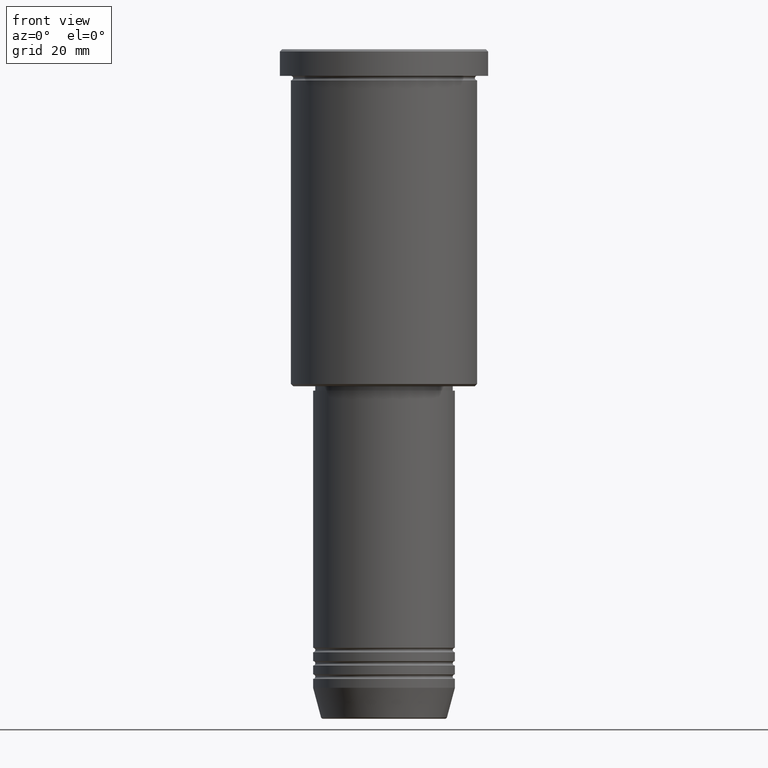
[diagram: clean part render]
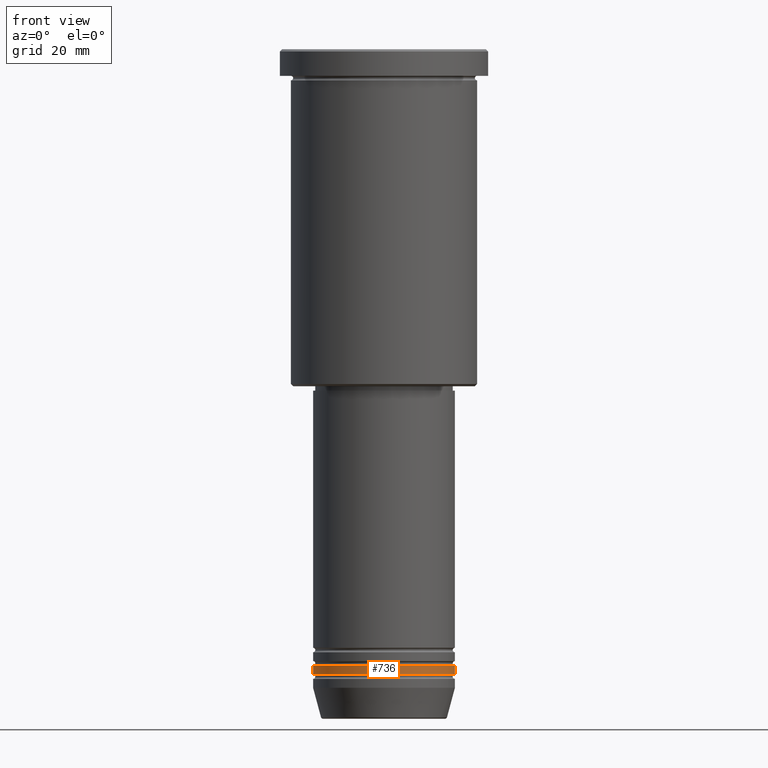
[diagram: same view with one face highlighted and labeled with its STEP entity id]
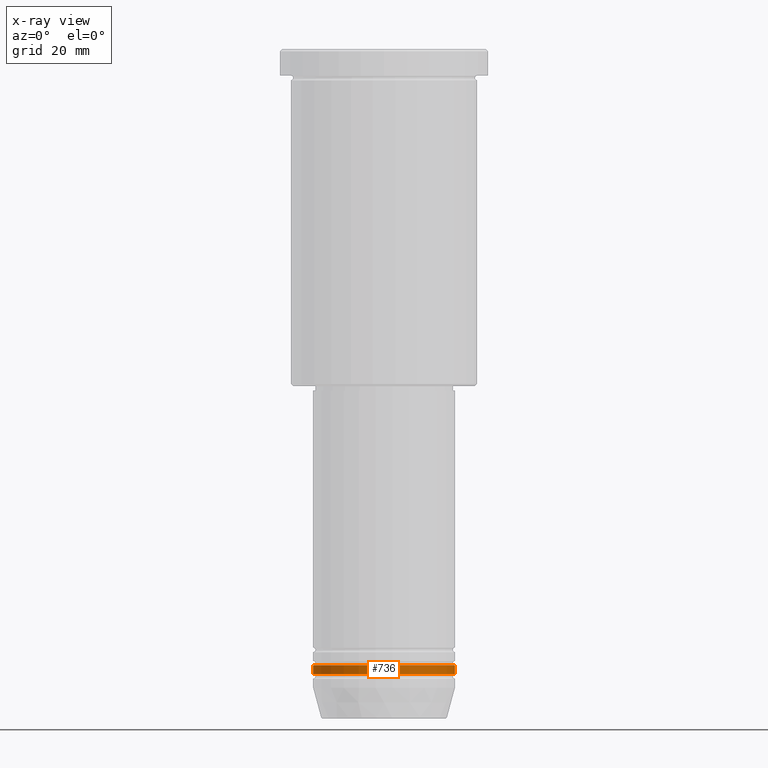
[diagram: x-ray of the same camera — body ghosted, the highlighted face saturated]
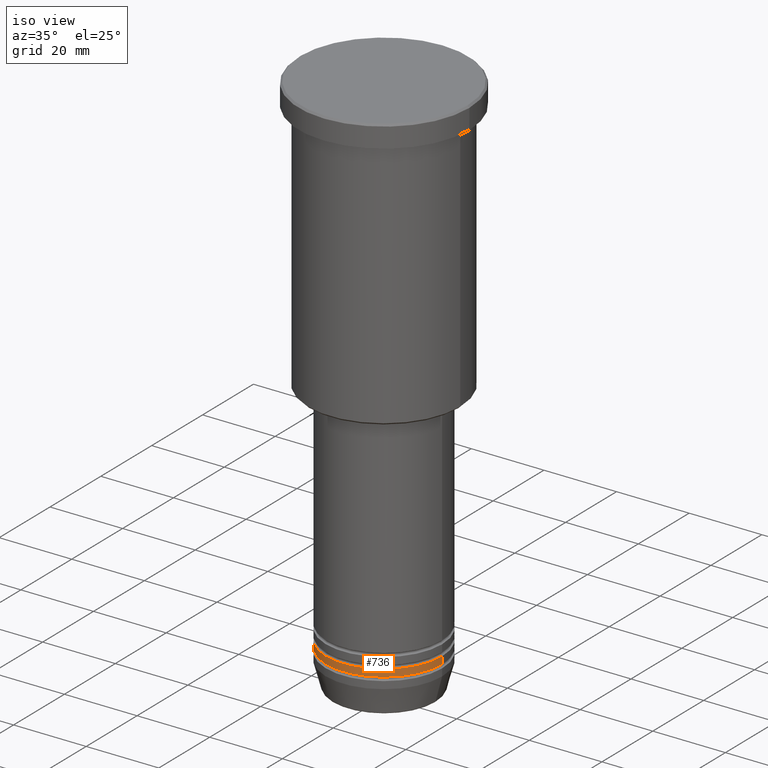
[diagram: same view with one face highlighted and labeled with its STEP entity id]
A machine part, front view. The second image highlights one B-rep face of the part: STEP entity #736.
The next image is the same camera in x-ray: the body ghosted, the highlighted face saturated — about 0% of this face is hidden behind the body in this view.
A second angle (iso view) of the same face is appended — the face is thin or edge-on in the first view.
In plain terms, the highlighted cylindrical surface (partial cylindrical patch) has radius 16 mm, axis along (-0, -0, 1).
Its self-contained STEP definition (entity closure, byte-faithful):
#36 = VERTEX_POINT ( 'NONE', #984 ) ;
#49 = ORIENTED_EDGE ( 'NONE', *, *, #144, .T. ) ;
#82 = CIRCLE ( 'NONE', #397, 16.00000000000000000 ) ;
#144 = EDGE_CURVE ( 'NONE', #577, #36, #275, .T. ) ;
#161 = VECTOR ( 'NONE', #497, 1000.000000000000000 ) ;
#170 = CARTESIAN_POINT ( 'NONE',  ( 0.000000000000000000, 0.000000000000000000, 0.000000000000000000 ) ) ;
#199 = CARTESIAN_POINT ( 'NONE',  ( -16.00000000000000000, 1.959434878635765131E-15, -140.9999999999999716 ) ) ;
#238 = DIRECTION ( 'NONE',  ( 1.000000000000000000, 0.000000000000000000, 0.000000000000000000 ) ) ;
#275 = LINE ( 'NONE', #722, #938 ) ;
#282 = VERTEX_POINT ( 'NONE', #331 ) ;
#331 = CARTESIAN_POINT ( 'NONE',  ( -16.00000000000000000, 1.959434878635765131E-15, -138.9999999999999432 ) ) ;
#379 = EDGE_CURVE ( 'NONE', #282, #36, #82, .T. ) ;
#383 = ORIENTED_EDGE ( 'NONE', *, *, #443, .F. ) ;
#384 = DIRECTION ( 'NONE',  ( -0.000000000000000000, -0.000000000000000000, 1.000000000000000000 ) ) ;
#397 = AXIS2_PLACEMENT_3D ( 'NONE', #534, #884, #238 ) ;
#405 = DIRECTION ( 'NONE',  ( -0.000000000000000000, -0.000000000000000000, 1.000000000000000000 ) ) ;
#423 = VERTEX_POINT ( 'NONE', #199 ) ;
#442 = EDGE_CURVE ( 'NONE', #423, #577, #594, .T. ) ;
#443 = EDGE_CURVE ( 'NONE', #423, #282, #744, .T. ) ;
#486 = CARTESIAN_POINT ( 'NONE',  ( 16.00000000000000000, 0.000000000000000000, -140.9999999999999716 ) ) ;
#497 = DIRECTION ( 'NONE',  ( -0.000000000000000000, -0.000000000000000000, 1.000000000000000000 ) ) ;
#521 = FACE_OUTER_BOUND ( 'NONE', #524, .T. ) ;
#524 = EDGE_LOOP ( 'NONE', ( #383, #1050, #49, #1127 ) ) ;
#534 = CARTESIAN_POINT ( 'NONE',  ( 0.000000000000000000, 0.000000000000000000, -138.9999999999999432 ) ) ;
#549 = DIRECTION ( 'NONE',  ( 1.000000000000000000, 0.000000000000000000, 0.000000000000000000 ) ) ;
#577 = VERTEX_POINT ( 'NONE', #486 ) ;
#594 = CIRCLE ( 'NONE', #890, 16.00000000000000000 ) ;
#596 = CARTESIAN_POINT ( 'NONE',  ( 0.000000000000000000, 0.000000000000000000, -140.9999999999999716 ) ) ;
#722 = CARTESIAN_POINT ( 'NONE',  ( 16.00000000000000000, 0.000000000000000000, 0.000000000000000000 ) ) ;
#736 = ADVANCED_FACE ( 'NONE', ( #521 ), #876, .T. ) ;
#744 = LINE ( 'NONE', #941, #161 ) ;
#844 = DIRECTION ( 'NONE',  ( 1.000000000000000000, 0.000000000000000000, 0.000000000000000000 ) ) ;
#865 = AXIS2_PLACEMENT_3D ( 'NONE', #170, #894, #549 ) ;
#876 = CYLINDRICAL_SURFACE ( 'NONE', #865, 16.00000000000000000 ) ;
#884 = DIRECTION ( 'NONE',  ( -0.000000000000000000, -0.000000000000000000, 1.000000000000000000 ) ) ;
#890 = AXIS2_PLACEMENT_3D ( 'NONE', #596, #405, #844 ) ;
#894 = DIRECTION ( 'NONE',  ( -0.000000000000000000, -0.000000000000000000, 1.000000000000000000 ) ) ;
#938 = VECTOR ( 'NONE', #384, 1000.000000000000000 ) ;
#941 = CARTESIAN_POINT ( 'NONE',  ( -16.00000000000000000, 1.959434878635765131E-15, 0.000000000000000000 ) ) ;
#984 = CARTESIAN_POINT ( 'NONE',  ( 16.00000000000000000, 0.000000000000000000, -138.9999999999999432 ) ) ;
#1050 = ORIENTED_EDGE ( 'NONE', *, *, #442, .T. ) ;
#1127 = ORIENTED_EDGE ( 'NONE', *, *, #379, .F. ) ;